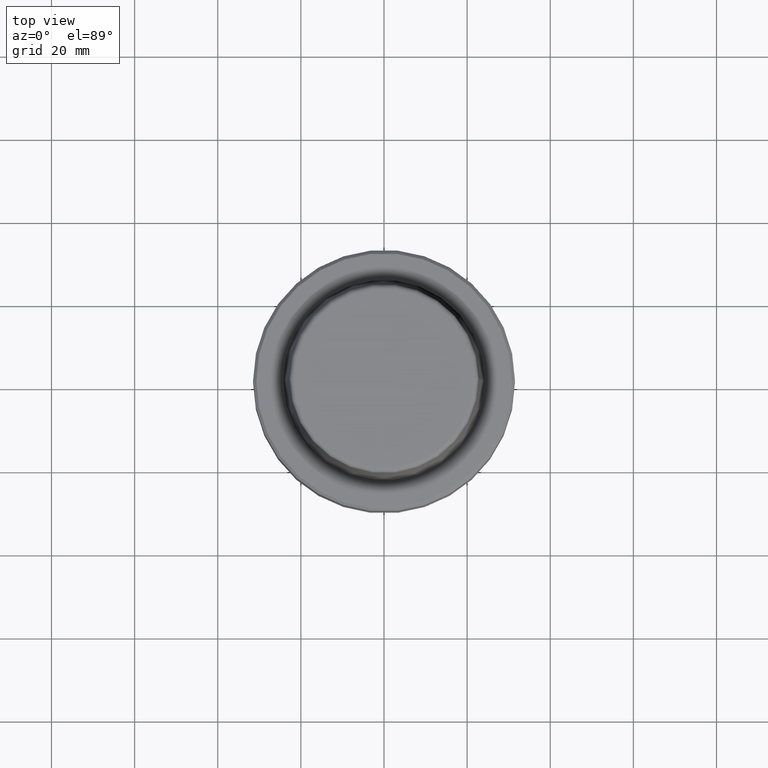
[diagram: clean part render]
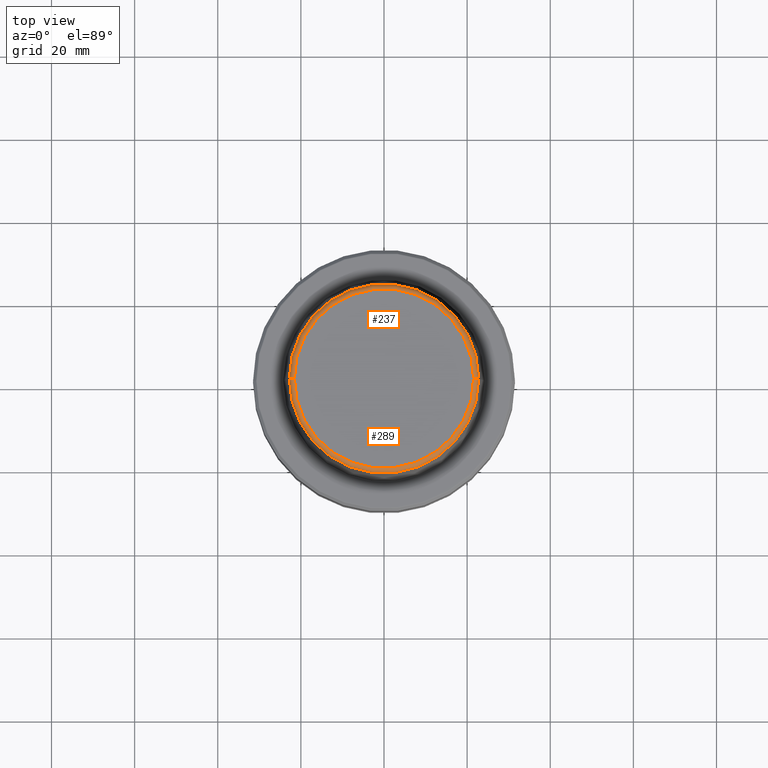
[diagram: same view with one multi-face feature highlighted, each face labeled with its STEP entity id]
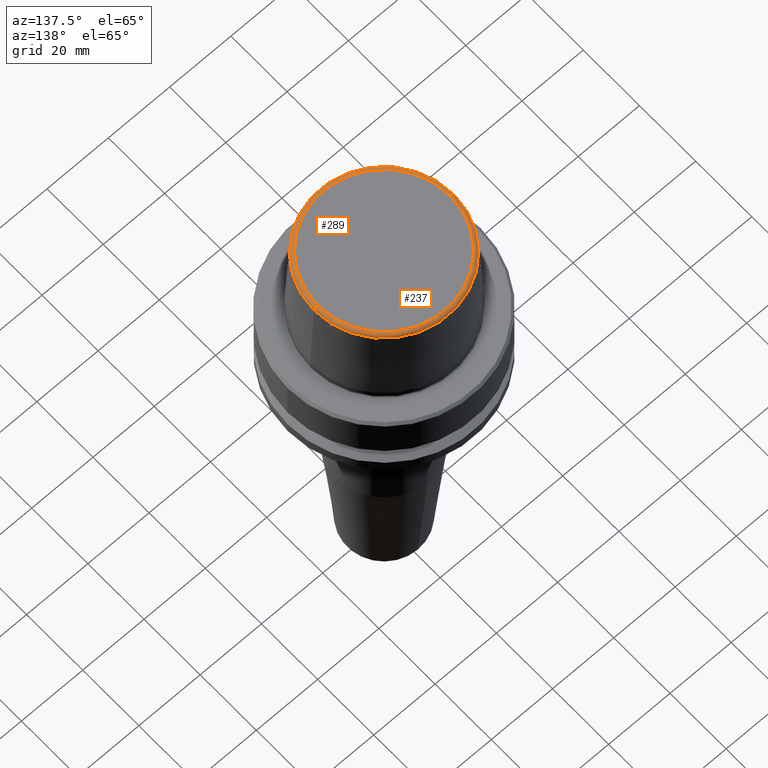
[diagram: same view with one multi-face feature highlighted, each face labeled with its STEP entity id]
A machine part, top view. The highlighted faces form ONE feature: a constant-radius fillet chain: 2 tangent blend faces with common blend radius 1.2 mm. The faces share edges in the B-rep.
A second angle (auxiliary view) of the same feature is appended — it is thin or edge-on in the first view.
Their STEP definitions:
[1] entity #289 (Torus):
#32 = CARTESIAN_POINT ( 'NONE',  ( -21.58108272732117100, 2.642920388414810300E-015, 30.69999999999999200 ) ) ;
#39 = DIRECTION ( 'NONE',  ( 1.000000000000000000, 0.0000000000000000000, 0.0000000000000000000 ) ) ;
#64 = CIRCLE ( 'NONE', #1237, 22.77957961851797100 ) ;
#68 = CARTESIAN_POINT ( 'NONE',  ( -21.58108272732117100, 2.716307157494421400E-015, 31.89999999999999900 ) ) ;
#115 = DIRECTION ( 'NONE',  ( -0.0000000000000000000, -0.0000000000000000000, 1.000000000000000000 ) ) ;
#136 = CIRCLE ( 'NONE', #1177, 1.200000000000003100 ) ;
#140 = AXIS2_PLACEMENT_3D ( 'NONE', #774, #305, #467 ) ;
#170 = CIRCLE ( 'NONE', #921, 1.200000000000003100 ) ;
#263 = EDGE_CURVE ( 'NONE', #370, #974, #64, .T. ) ;
#267 = CARTESIAN_POINT ( 'NONE',  ( 22.77957961851797100, 2.876386432489616700E-015, 30.76004333261571900 ) ) ;
#289 = ADVANCED_FACE ( 'NONE', ( #291 ), #916, .T. ) ;
#291 = FACE_OUTER_BOUND ( 'NONE', #848, .T. ) ;
#295 = CARTESIAN_POINT ( 'NONE',  ( -22.77957961851797100, 0.0000000000000000000, 30.76004333261571900 ) ) ;
#305 = DIRECTION ( 'NONE',  ( -0.0000000000000000000, -0.0000000000000000000, 1.000000000000000000 ) ) ;
#314 = VERTEX_POINT ( 'NONE', #68 ) ;
#318 = CARTESIAN_POINT ( 'NONE',  ( 0.0000000000000000000, 0.0000000000000000000, 30.69999999999999200 ) ) ;
#319 = DIRECTION ( 'NONE',  ( -1.000000000000000000, 1.224646799147353200E-016, 0.0000000000000000000 ) ) ;
#324 = ORIENTED_EDGE ( 'NONE', *, *, #900, .T. ) ;
#370 = VERTEX_POINT ( 'NONE', #295 ) ;
#467 = DIRECTION ( 'NONE',  ( 1.000000000000000000, 0.0000000000000000000, 0.0000000000000000000 ) ) ;
#486 = DIRECTION ( 'NONE',  ( -0.0000000000000000000, -0.0000000000000000000, 1.000000000000000000 ) ) ;
#513 = DIRECTION ( 'NONE',  ( 0.0000000000000000000, -1.000000000000000000, 0.0000000000000000000 ) ) ;
#607 = EDGE_CURVE ( 'NONE', #314, #913, #1202, .T. ) ;
#613 = CARTESIAN_POINT ( 'NONE',  ( 21.58108272732117100, 0.0000000000000000000, 30.69999999999999200 ) ) ;
#687 = ORIENTED_EDGE ( 'NONE', *, *, #607, .F. ) ;
#774 = CARTESIAN_POINT ( 'NONE',  ( 0.0000000000000000000, 0.0000000000000000000, 31.89999999999999900 ) ) ;
#841 = DIRECTION ( 'NONE',  ( 0.0000000000000000000, 0.0000000000000000000, -1.000000000000000000 ) ) ;
#848 = EDGE_LOOP ( 'NONE', ( #917, #1061, #324, #687 ) ) ;
#857 = EDGE_CURVE ( 'NONE', #370, #314, #136, .T. ) ;
#892 = AXIS2_PLACEMENT_3D ( 'NONE', #318, #115, #39 ) ;
#900 = EDGE_CURVE ( 'NONE', #974, #913, #170, .T. ) ;
#913 = VERTEX_POINT ( 'NONE', #1047 ) ;
#916 = TOROIDAL_SURFACE ( 'NONE', #892, 21.58108272732117100, 1.200000000000003100 ) ;
#917 = ORIENTED_EDGE ( 'NONE', *, *, #857, .F. ) ;
#921 = AXIS2_PLACEMENT_3D ( 'NONE', #613, #513, #841 ) ;
#974 = VERTEX_POINT ( 'NONE', #267 ) ;
#1047 = CARTESIAN_POINT ( 'NONE',  ( 21.58108272732117100, 0.0000000000000000000, 31.89999999999999900 ) ) ;
#1061 = ORIENTED_EDGE ( 'NONE', *, *, #263, .T. ) ;
#1095 = DIRECTION ( 'NONE',  ( 1.224646799147353200E-016, 1.000000000000000000, 0.0000000000000000000 ) ) ;
#1159 = DIRECTION ( 'NONE',  ( 1.000000000000000000, 0.0000000000000000000, 0.0000000000000000000 ) ) ;
#1175 = CARTESIAN_POINT ( 'NONE',  ( 0.0000000000000000000, 0.0000000000000000000, 30.76004333261571900 ) ) ;
#1177 = AXIS2_PLACEMENT_3D ( 'NONE', #32, #1095, #319 ) ;
#1202 = CIRCLE ( 'NONE', #140, 21.58108272732117100 ) ;
#1237 = AXIS2_PLACEMENT_3D ( 'NONE', #1175, #486, #1159 ) ;
[2] entity #237 (Torus):
#32 = CARTESIAN_POINT ( 'NONE',  ( -21.58108272732117100, 2.642920388414810300E-015, 30.69999999999999200 ) ) ;
#50 = DIRECTION ( 'NONE',  ( 1.000000000000000000, 0.0000000000000000000, 0.0000000000000000000 ) ) ;
#68 = CARTESIAN_POINT ( 'NONE',  ( -21.58108272732117100, 2.716307157494421400E-015, 31.89999999999999900 ) ) ;
#136 = CIRCLE ( 'NONE', #1177, 1.200000000000003100 ) ;
#170 = CIRCLE ( 'NONE', #921, 1.200000000000003100 ) ;
#219 = AXIS2_PLACEMENT_3D ( 'NONE', #1088, #821, #756 ) ;
#237 = ADVANCED_FACE ( 'NONE', ( #720 ), #766, .T. ) ;
#267 = CARTESIAN_POINT ( 'NONE',  ( 22.77957961851797100, 2.876386432489616700E-015, 30.76004333261571900 ) ) ;
#295 = CARTESIAN_POINT ( 'NONE',  ( -22.77957961851797100, 0.0000000000000000000, 30.76004333261571900 ) ) ;
#314 = VERTEX_POINT ( 'NONE', #68 ) ;
#319 = DIRECTION ( 'NONE',  ( -1.000000000000000000, 1.224646799147353200E-016, 0.0000000000000000000 ) ) ;
#370 = VERTEX_POINT ( 'NONE', #295 ) ;
#476 = CIRCLE ( 'NONE', #773, 22.77957961851797100 ) ;
#499 = DIRECTION ( 'NONE',  ( 1.000000000000000000, 0.0000000000000000000, 0.0000000000000000000 ) ) ;
#513 = DIRECTION ( 'NONE',  ( 0.0000000000000000000, -1.000000000000000000, 0.0000000000000000000 ) ) ;
#523 = CARTESIAN_POINT ( 'NONE',  ( 0.0000000000000000000, 0.0000000000000000000, 30.69999999999999200 ) ) ;
#591 = DIRECTION ( 'NONE',  ( -0.0000000000000000000, -0.0000000000000000000, 1.000000000000000000 ) ) ;
#613 = CARTESIAN_POINT ( 'NONE',  ( 21.58108272732117100, 0.0000000000000000000, 30.69999999999999200 ) ) ;
#683 = ORIENTED_EDGE ( 'NONE', *, *, #781, .T. ) ;
#718 = DIRECTION ( 'NONE',  ( -0.0000000000000000000, -0.0000000000000000000, 1.000000000000000000 ) ) ;
#720 = FACE_OUTER_BOUND ( 'NONE', #965, .T. ) ;
#756 = DIRECTION ( 'NONE',  ( 1.000000000000000000, 0.0000000000000000000, 0.0000000000000000000 ) ) ;
#766 = TOROIDAL_SURFACE ( 'NONE', #849, 21.58108272732117100, 1.200000000000003100 ) ;
#773 = AXIS2_PLACEMENT_3D ( 'NONE', #1007, #718, #50 ) ;
#781 = EDGE_CURVE ( 'NONE', #974, #370, #476, .T. ) ;
#791 = EDGE_CURVE ( 'NONE', #913, #314, #953, .T. ) ;
#821 = DIRECTION ( 'NONE',  ( -0.0000000000000000000, -0.0000000000000000000, 1.000000000000000000 ) ) ;
#841 = DIRECTION ( 'NONE',  ( 0.0000000000000000000, 0.0000000000000000000, -1.000000000000000000 ) ) ;
#849 = AXIS2_PLACEMENT_3D ( 'NONE', #523, #591, #499 ) ;
#857 = EDGE_CURVE ( 'NONE', #370, #314, #136, .T. ) ;
#900 = EDGE_CURVE ( 'NONE', #974, #913, #170, .T. ) ;
#913 = VERTEX_POINT ( 'NONE', #1047 ) ;
#921 = AXIS2_PLACEMENT_3D ( 'NONE', #613, #513, #841 ) ;
#953 = CIRCLE ( 'NONE', #219, 21.58108272732117100 ) ;
#965 = EDGE_LOOP ( 'NONE', ( #683, #1044, #1079, #987 ) ) ;
#974 = VERTEX_POINT ( 'NONE', #267 ) ;
#987 = ORIENTED_EDGE ( 'NONE', *, *, #900, .F. ) ;
#1007 = CARTESIAN_POINT ( 'NONE',  ( 0.0000000000000000000, 0.0000000000000000000, 30.76004333261571900 ) ) ;
#1044 = ORIENTED_EDGE ( 'NONE', *, *, #857, .T. ) ;
#1047 = CARTESIAN_POINT ( 'NONE',  ( 21.58108272732117100, 0.0000000000000000000, 31.89999999999999900 ) ) ;
#1079 = ORIENTED_EDGE ( 'NONE', *, *, #791, .F. ) ;
#1088 = CARTESIAN_POINT ( 'NONE',  ( 0.0000000000000000000, 0.0000000000000000000, 31.89999999999999900 ) ) ;
#1095 = DIRECTION ( 'NONE',  ( 1.224646799147353200E-016, 1.000000000000000000, 0.0000000000000000000 ) ) ;
#1177 = AXIS2_PLACEMENT_3D ( 'NONE', #32, #1095, #319 ) ;